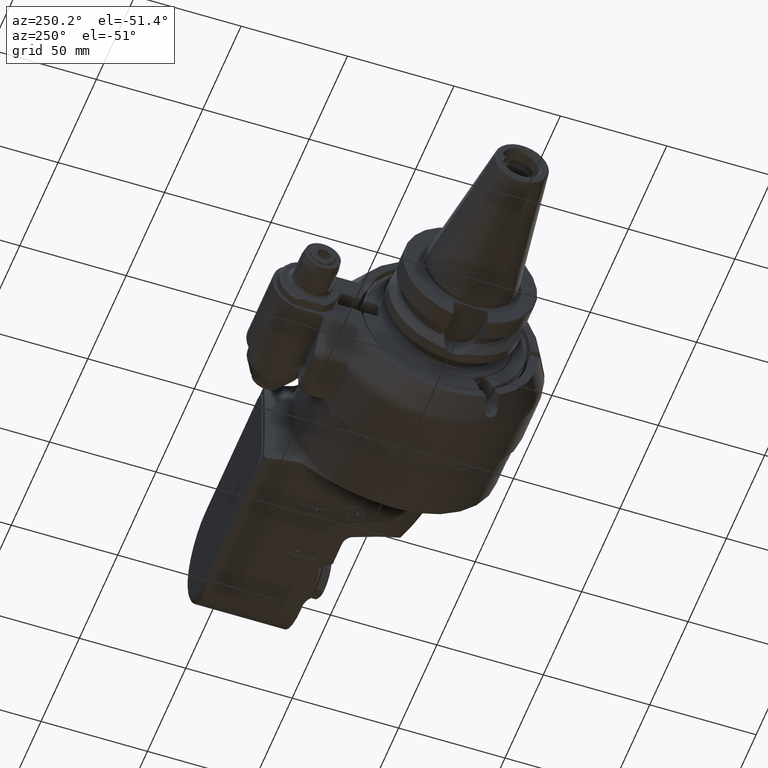
[diagram: clean part render]
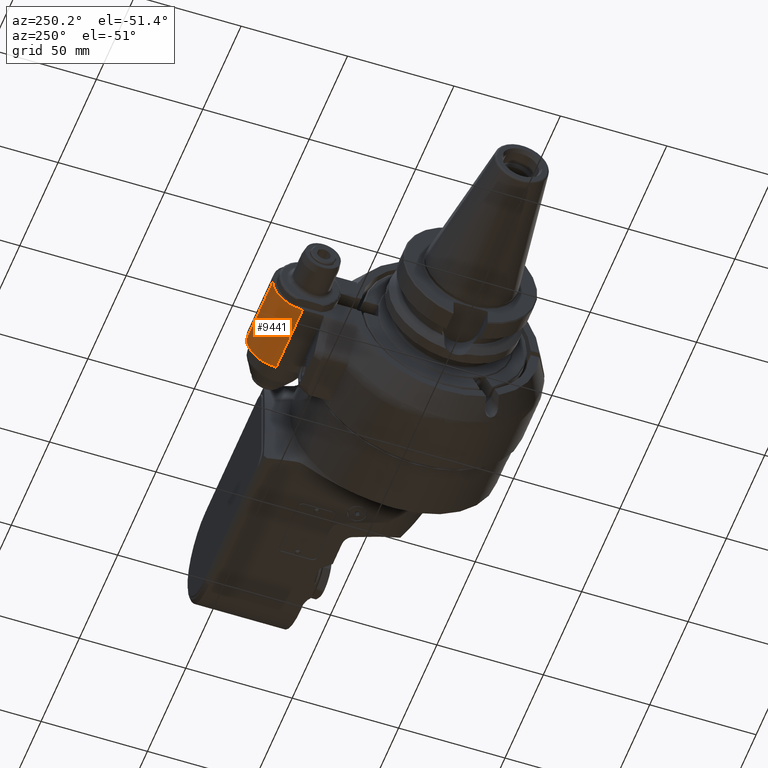
[diagram: same view with one face highlighted and labeled with its STEP entity id]
A machine part, auxiliary view. The second image highlights one B-rep face of the part: STEP entity #9441.
In plain terms, the highlighted cylindrical surface (edge-blend (fillet) strip) has radius 14 mm, axis along (1, 0, -0).
Its self-contained STEP definition (entity closure, byte-faithful):
#856=FACE_OUTER_BOUND('',#1467,.T.);
#1467=EDGE_LOOP('',(#6844,#6845,#6846,#6847));
#2132=CIRCLE('',#10184,14.);
#2143=CIRCLE('',#10204,14.);
#2815=LINE('',#14839,#3479);
#2816=LINE('',#14841,#3480);
#3479=VECTOR('',#11625,34.5);
#3480=VECTOR('',#11628,34.5);
#4143=VERTEX_POINT('',#14711);
#4144=VERTEX_POINT('',#14713);
#4173=VERTEX_POINT('',#14799);
#4174=VERTEX_POINT('',#14801);
#5142=EDGE_CURVE('',#4143,#4144,#2132,.T.);
#5183=EDGE_CURVE('',#4173,#4174,#2143,.T.);
#5203=EDGE_CURVE('',#4173,#4144,#2815,.T.);
#5204=EDGE_CURVE('',#4143,#4174,#2816,.T.);
#6844=ORIENTED_EDGE('',*,*,#5203,.T.);
#6845=ORIENTED_EDGE('',*,*,#5142,.F.);
#6846=ORIENTED_EDGE('',*,*,#5204,.T.);
#6847=ORIENTED_EDGE('',*,*,#5183,.F.);
#9211=CYLINDRICAL_SURFACE('',#10219,14.);
#9441=ADVANCED_FACE('',(#856),#9211,.T.);
#10184=AXIS2_PLACEMENT_3D('',#14714,#11517,#11518);
#10204=AXIS2_PLACEMENT_3D('',#14802,#11583,#11584);
#10219=AXIS2_PLACEMENT_3D('',#14840,#11626,#11627);
#11517=DIRECTION('center_axis',(1.,0.,0.));
#11518=DIRECTION('ref_axis',(0.,0.,-1.));
#11583=DIRECTION('center_axis',(-1.,0.,0.));
#11584=DIRECTION('ref_axis',(0.,1.,0.));
#11625=DIRECTION('',(1.,0.,0.));
#11626=DIRECTION('center_axis',(1.,0.,0.));
#11627=DIRECTION('ref_axis',(0.,1.,0.));
#11628=DIRECTION('',(-1.,0.,0.));
#14711=CARTESIAN_POINT('',(-17.,67.25,-15.));
#14713=CARTESIAN_POINT('',(-17.,81.25,-1.));
#14714=CARTESIAN_POINT('Origin',(-17.,67.25,-1.));
#14799=CARTESIAN_POINT('',(-51.5,81.25,-1.));
#14801=CARTESIAN_POINT('',(-51.5,67.25,-15.));
#14802=CARTESIAN_POINT('Origin',(-51.5,67.25,-1.));
#14839=CARTESIAN_POINT('',(-51.5,81.25,-1.));
#14840=CARTESIAN_POINT('Origin',(-43.,67.25,-1.));
#14841=CARTESIAN_POINT('',(-17.,67.25,-15.));